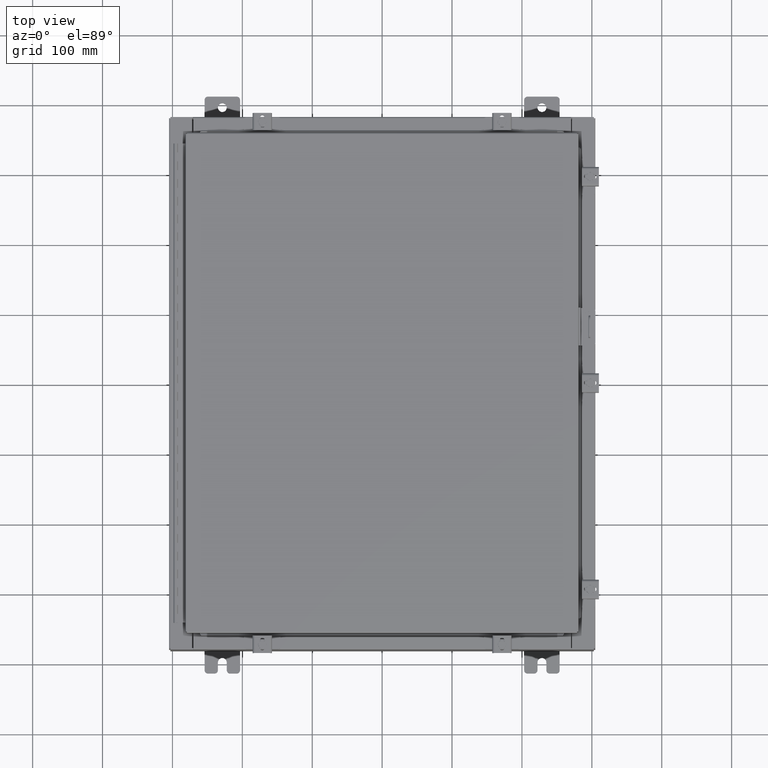
[diagram: clean part render]
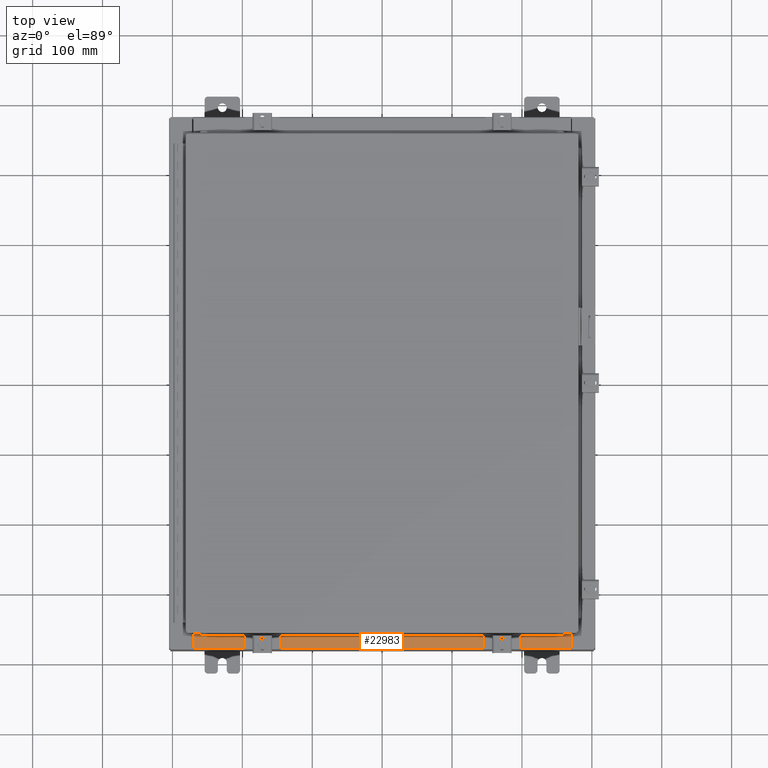
[diagram: same view with one face highlighted and labeled with its STEP entity id]
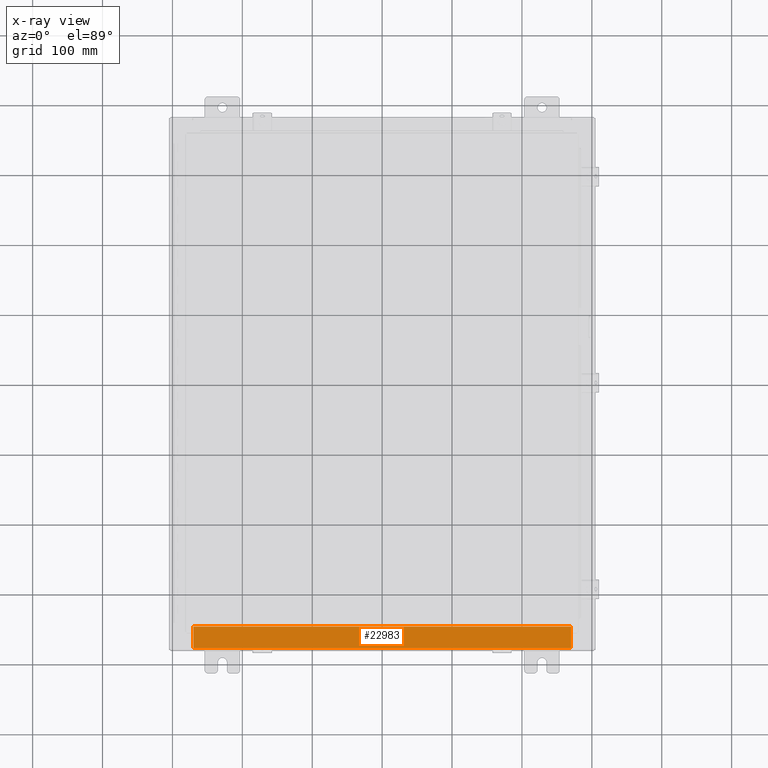
[diagram: x-ray of the same camera — body ghosted, the highlighted face saturated]
A machine part, top view. The second image highlights one B-rep face of the part: STEP entity #22983.
The next image is the same camera in x-ray: the body ghosted, the highlighted face saturated — about 0% of this face is hidden behind the body in this view.
In plain terms, the highlighted planar face has unit normal (-0, -0, 1).
Its self-contained STEP definition (entity closure, byte-faithful):
#732 = VECTOR ( 'NONE', #23236, 39.37007874015748100 ) ;
#738 = CARTESIAN_POINT ( 'NONE',  ( -2.252313287748515100E-018, -0.08770000000000000000, 3.000000000000001300 ) ) ;
#1665 = LINE ( 'NONE', #20325, #732 ) ;
#3244 = VECTOR ( 'NONE', #13173, 39.37007874015748100 ) ;
#3783 = LINE ( 'NONE', #738, #10570 ) ;
#4182 = DIRECTION ( 'NONE',  ( 0.0000000000000000000, 3.566381192773190000E-015, 1.000000000000000000 ) ) ;
#5888 = EDGE_CURVE ( 'NONE', #14460, #22800, #9107, .T. ) ;
#6963 = CARTESIAN_POINT ( 'NONE',  ( 0.0000000000000000000, 1.069354855923099900E-014, 3.000000000000000900 ) ) ;
#8338 = ORIENTED_EDGE ( 'NONE', *, *, #5888, .F. ) ;
#9107 = LINE ( 'NONE', #33734, #3244 ) ;
#10570 = VECTOR ( 'NONE', #18045, 39.37007874015748100 ) ;
#12771 = PLANE ( 'NONE',  #24449 ) ;
#12806 = CARTESIAN_POINT ( 'NONE',  ( 10.63720000000000400, -1.287299999999999900, 3.000000000000005300 ) ) ;
#13173 = DIRECTION ( 'NONE',  ( -0.0000000000000000000, -1.000000000000000000, 3.566381192773190000E-015 ) ) ;
#14363 = ORIENTED_EDGE ( 'NONE', *, *, #24348, .F. ) ;
#14460 = VERTEX_POINT ( 'NONE', #34093 ) ;
#15629 = VERTEX_POINT ( 'NONE', #29118 ) ;
#15688 = DIRECTION ( 'NONE',  ( -1.000000000000000000, 0.0000000000000000000, 0.0000000000000000000 ) ) ;
#17088 = LINE ( 'NONE', #12806, #31548 ) ;
#17290 = CARTESIAN_POINT ( 'NONE',  ( 10.63720000000000200, -1.287299999999999900, 3.000000000000005300 ) ) ;
#17657 = EDGE_CURVE ( 'NONE', #15629, #25092, #1665, .T. ) ;
#18045 = DIRECTION ( 'NONE',  ( -1.000000000000000000, 2.568202152506545800E-017, -9.159187855938968600E-032 ) ) ;
#19728 = EDGE_CURVE ( 'NONE', #14460, #25092, #3783, .T. ) ;
#20325 = CARTESIAN_POINT ( 'NONE',  ( -10.63720000000000200, -0.07469999999999973900, 3.000000000000000900 ) ) ;
#22800 = VERTEX_POINT ( 'NONE', #17290 ) ;
#22828 = ORIENTED_EDGE ( 'NONE', *, *, #19728, .T. ) ;
#22983 = ADVANCED_FACE ( 'NONE', ( #27150 ), #12771, .T. ) ;
#23236 = DIRECTION ( 'NONE',  ( -0.0000000000000000000, 1.000000000000000000, -3.566381192773190000E-015 ) ) ;
#23817 = EDGE_LOOP ( 'NONE', ( #31302, #14363, #8338, #22828 ) ) ;
#24348 = EDGE_CURVE ( 'NONE', #22800, #15629, #17088, .T. ) ;
#24370 = DIRECTION ( 'NONE',  ( 0.0000000000000000000, -1.000000000000000000, 3.566381192773190000E-015 ) ) ;
#24449 = AXIS2_PLACEMENT_3D ( 'NONE', #6963, #4182, #24370 ) ;
#25092 = VERTEX_POINT ( 'NONE', #34636 ) ;
#27150 = FACE_OUTER_BOUND ( 'NONE', #23817, .T. ) ;
#29118 = CARTESIAN_POINT ( 'NONE',  ( -10.63720000000000200, -1.287299999999999200, 3.000000000000005300 ) ) ;
#31302 = ORIENTED_EDGE ( 'NONE', *, *, #17657, .F. ) ;
#31548 = VECTOR ( 'NONE', #15688, 39.37007874015748100 ) ;
#33734 = CARTESIAN_POINT ( 'NONE',  ( 10.63720000000000200, -1.300299999999999800, 3.000000000000005300 ) ) ;
#34093 = CARTESIAN_POINT ( 'NONE',  ( 10.63720000000000400, -0.08769999999999965300, 3.000000000000000900 ) ) ;
#34636 = CARTESIAN_POINT ( 'NONE',  ( -10.63720000000000200, -0.08770000000000000000, 3.000000000000000900 ) ) ;